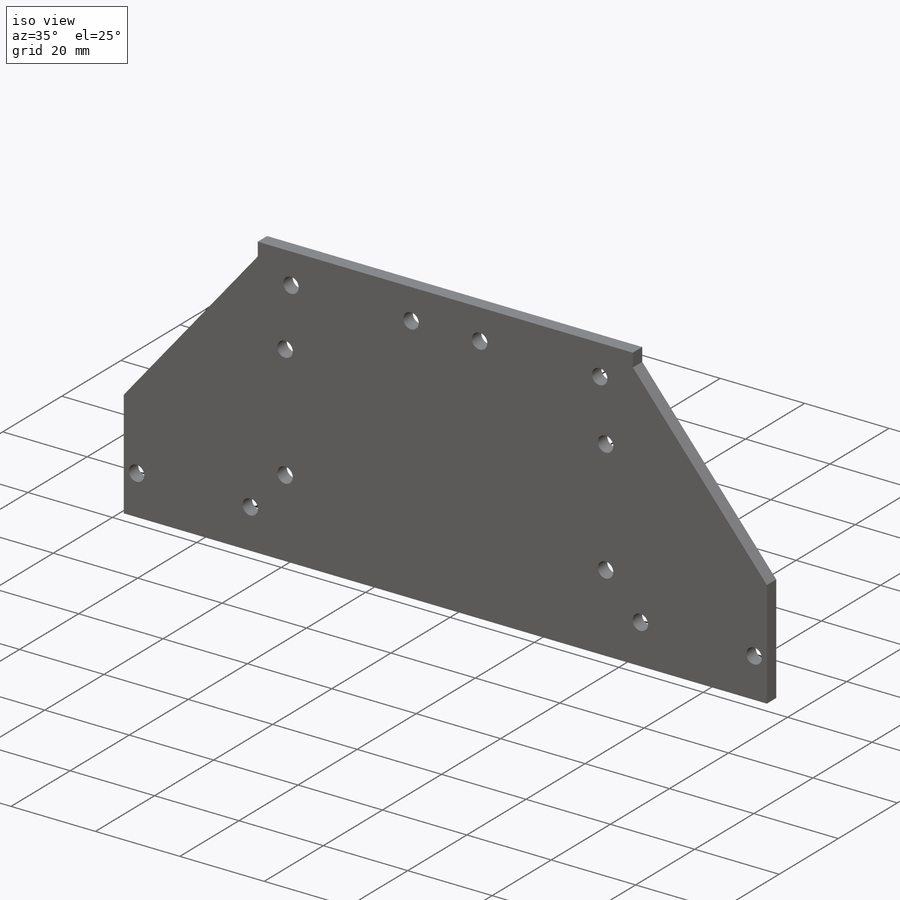
[diagram: iso view]
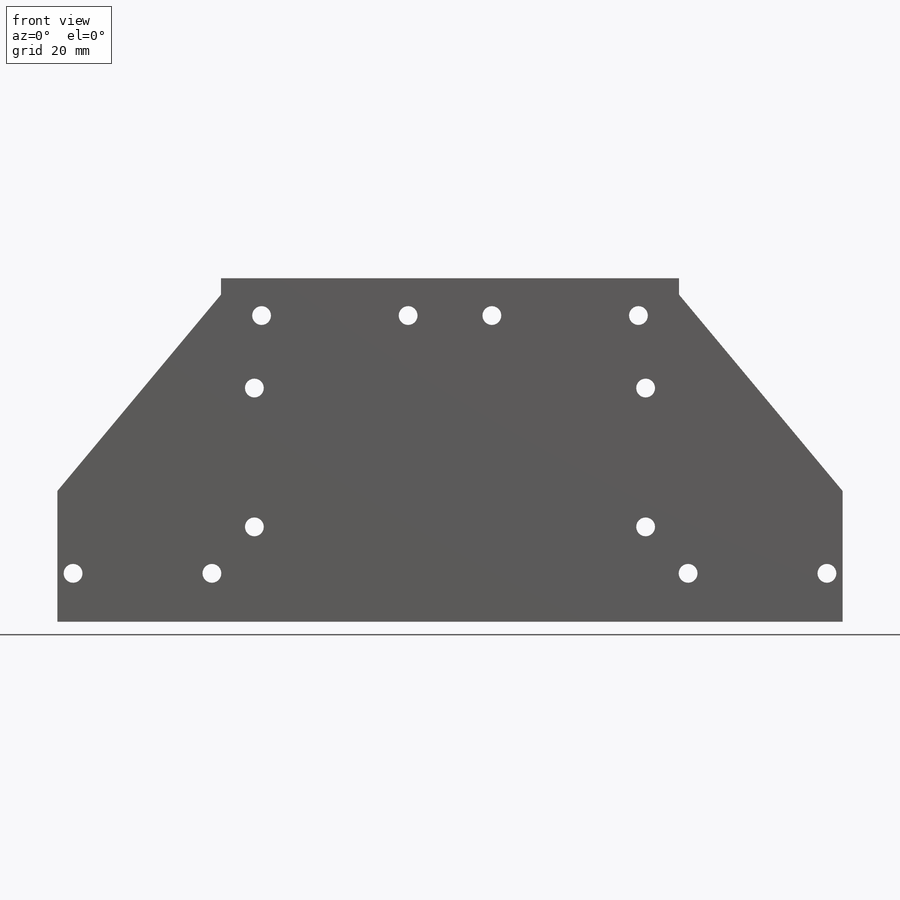
[diagram: front view]
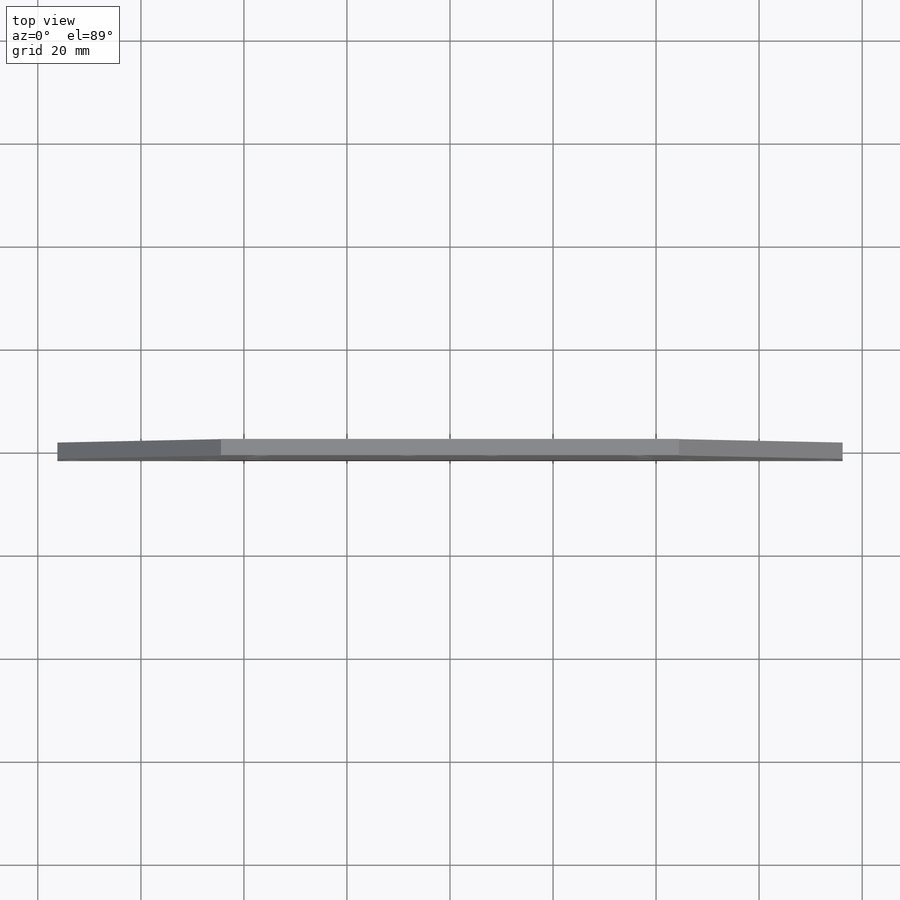
[diagram: top view]
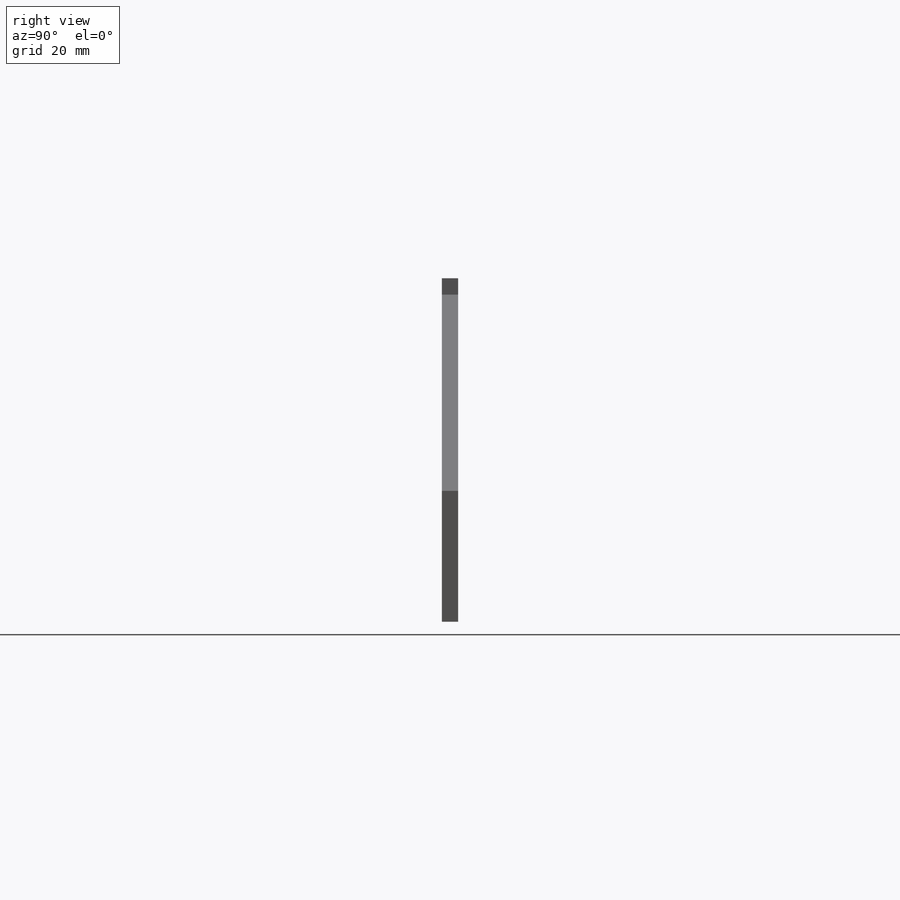
[diagram: right view]
SOLIDWORKS PART (.sldprt)
format: sldprt  version: not decoded by parser v0  size: 275,968 bytes
history: native  units: mm
features: sketch x6, cut_extrude x4, extrude x2, material x1 (+12 scaffold rows collapsed)
feature tree (25):
  scaffold x12  (default folders/planes/origin — collapsed)
  material  "Material <not specified>"
  sketch  "Sketch1"  dims[c1.D1=~8.014866mm c1.D2=~89.944608mm c2.D1=3.175mm c2.D2=88.9mm]
  extrude  "Boss-Extrude1"  Depth=51.435mm
  sketch  "Sketch2"  dims[D5=3.6576mm D6=3.6576mm D1=7.239mm D2=7.239mm D3=8.128mm D4=7.874mm]
  cut_extrude  "Cut-Extrude1"  [1 undecoded]
  sketch  "Sketch3"  dims[D3=3.6576mm D5=3.6576mm D1=12.954mm D2=3.175mm D4=26.9494mm]
  cut_extrude  "Cut-Extrude2"  [1 undecoded]
  sketch  "Sketch4"  dims[c1.D1=~39.535878mm c1.D2=~47.574516mm c2.D1=31.75mm c2.D2=3.175mm c2.D3=~13.344954mm c2.D4=76.2mm c3.D3=15.24mm c3.D4=48.26mm]
  extrude  "Boss-Extrude2"  Depth=3.175mm
  sketch  "Sketch5"  dims[D1=25.4mm D2=~88.130743mm]
  cut_extrude  "Cut-Extrude3"  [1 undecoded]
  sketch  "Sketch6"  dims[D4=3.6576mm D5=3.6576mm D1=3.0353mm D2=9.398mm D3=26.9494mm]
  cut_extrude  "Cut-Extrude4"  [1 undecoded]
decode coverage: 8 of 12 modeling features carry decoded parameters
note: ~ marks probable driven/reference dimensions
note: 4 parameter values undecoded
summary: no parameter record found for 4 features
note: suppression state not decoded; provenance and decode notes live in map.json
